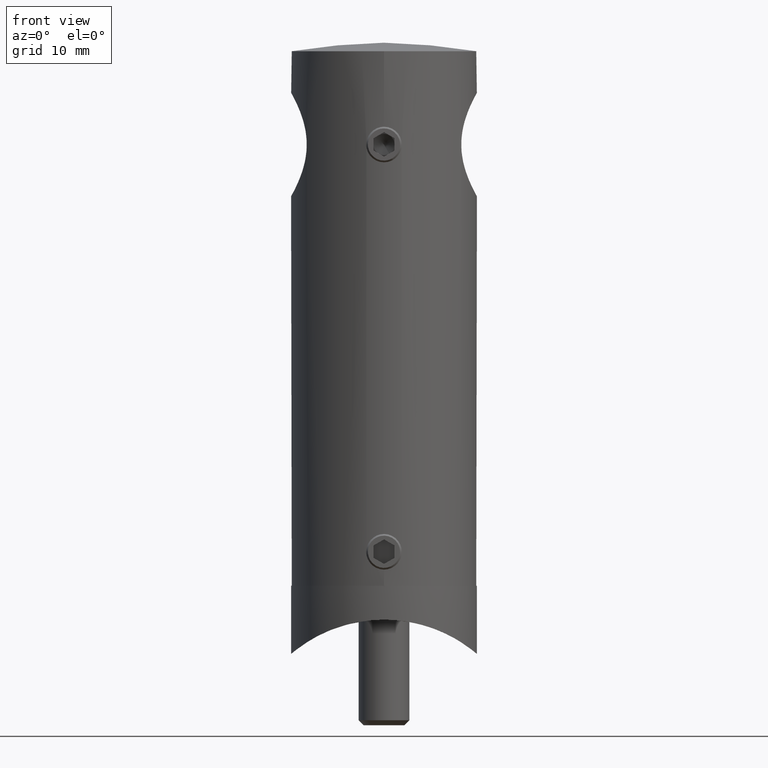
[diagram: clean part render]
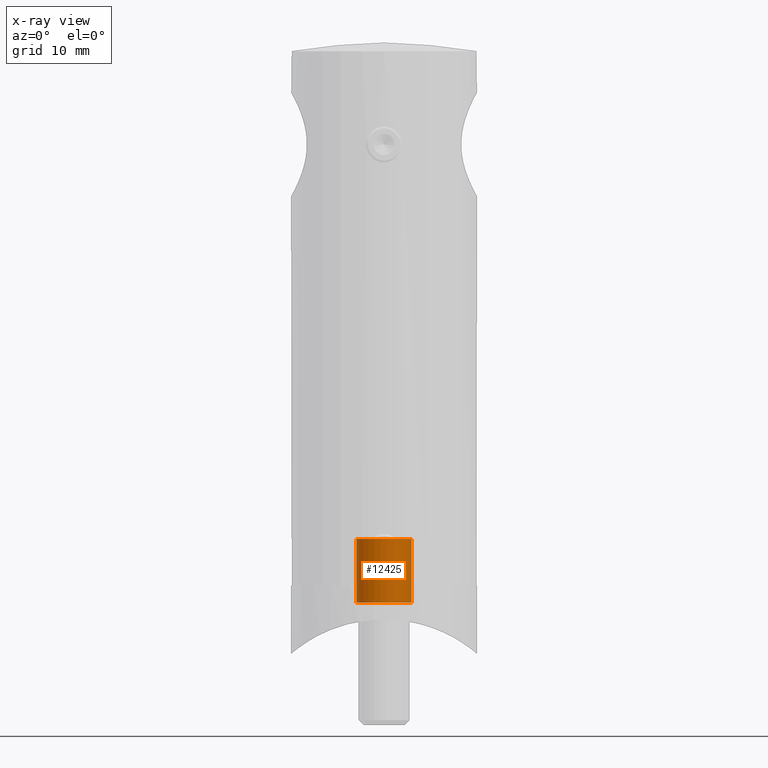
[diagram: x-ray — body ghosted, one internal face saturated and labeled with its STEP entity id]
A machine part, front view, then the same camera in x-ray: the body is ghosted and one INTERNAL B-rep face — a face not visible from any outside direction — is saturated and labeled: STEP entity #12425.
In plain terms, the highlighted cylindrical surface (bore or boss wall) has radius 3.25 mm, axis along (0, 0, 1).
Its self-contained STEP definition (entity closure, byte-faithful):
#344 = ORIENTED_EDGE ( 'NONE', *, *, #5638, .T. ) ;
#418 = EDGE_LOOP ( 'NONE', ( #344 ) ) ;
#1093 = CYLINDRICAL_SURFACE ( 'NONE', #7405, 3.250000000000000000 ) ;
#1231 = EDGE_CURVE ( 'NONE', #9188, #9188, #10097, .T. ) ;
#2308 = ORIENTED_EDGE ( 'NONE', *, *, #1231, .F. ) ;
#2761 = VERTEX_POINT ( 'NONE', #6669 ) ;
#3133 = EDGE_LOOP ( 'NONE', ( #2308 ) ) ;
#3188 = DIRECTION ( 'NONE',  ( 1.000000000000000000, 0.000000000000000000, 0.000000000000000000 ) ) ;
#3867 = CARTESIAN_POINT ( 'NONE',  ( 3.250000000000000444, 0.000000000000000000, -3.750000000000001776 ) ) ;
#4524 = CARTESIAN_POINT ( 'NONE',  ( 0.000000000000000000, 0.000000000000000000, 3.749999999999999556 ) ) ;
#4870 = AXIS2_PLACEMENT_3D ( 'NONE', #4524, #6879, #10360 ) ;
#5638 = EDGE_CURVE ( 'NONE', #2761, #2761, #10141, .T. ) ;
#6669 = CARTESIAN_POINT ( 'NONE',  ( 3.249999999999999556, 0.000000000000000000, 3.749999999999999556 ) ) ;
#6735 = FACE_OUTER_BOUND ( 'NONE', #3133, .T. ) ;
#6879 = DIRECTION ( 'NONE',  ( -0.000000000000000000, -0.000000000000000000, 1.000000000000000000 ) ) ;
#7405 = AXIS2_PLACEMENT_3D ( 'NONE', #8946, #14783, #3188 ) ;
#8259 = DIRECTION ( 'NONE',  ( -0.000000000000000000, -0.000000000000000000, 1.000000000000000000 ) ) ;
#8946 = CARTESIAN_POINT ( 'NONE',  ( 0.000000000000000000, 0.000000000000000000, 5.750000000000000000 ) ) ;
#9188 = VERTEX_POINT ( 'NONE', #3867 ) ;
#9889 = AXIS2_PLACEMENT_3D ( 'NONE', #15403, #8259, #10552 ) ;
#10097 = CIRCLE ( 'NONE', #9889, 3.250000000000000444 ) ;
#10108 = FACE_OUTER_BOUND ( 'NONE', #418, .T. ) ;
#10141 = CIRCLE ( 'NONE', #4870, 3.249999999999999556 ) ;
#10360 = DIRECTION ( 'NONE',  ( 1.000000000000000000, 0.000000000000000000, 0.000000000000000000 ) ) ;
#10552 = DIRECTION ( 'NONE',  ( 1.000000000000000000, 0.000000000000000000, 0.000000000000000000 ) ) ;
#12425 = ADVANCED_FACE ( 'NONE', ( #6735, #10108 ), #1093, .F. ) ;
#14783 = DIRECTION ( 'NONE',  ( -0.000000000000000000, -0.000000000000000000, 1.000000000000000000 ) ) ;
#15403 = CARTESIAN_POINT ( 'NONE',  ( 0.000000000000000000, 0.000000000000000000, -3.750000000000001776 ) ) ;